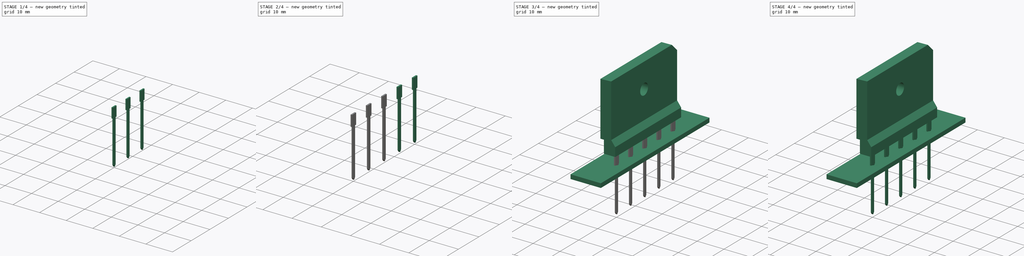
[diagram: build sequence overview — one tinted view per stage of 4, left to right]
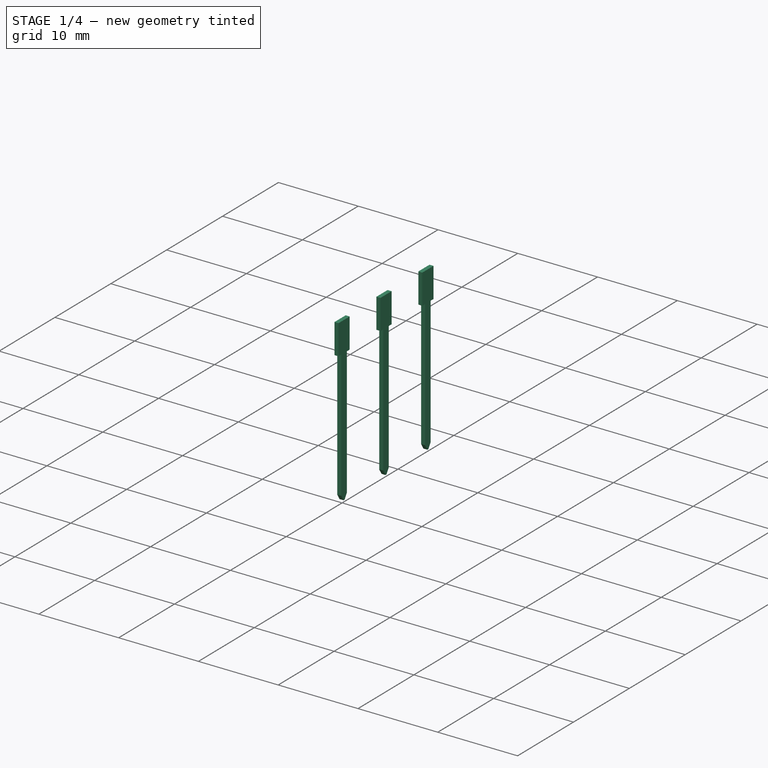
[diagram: stage 1 of 4 — iso view after this stage's code; geometry added in this stage tinted green]
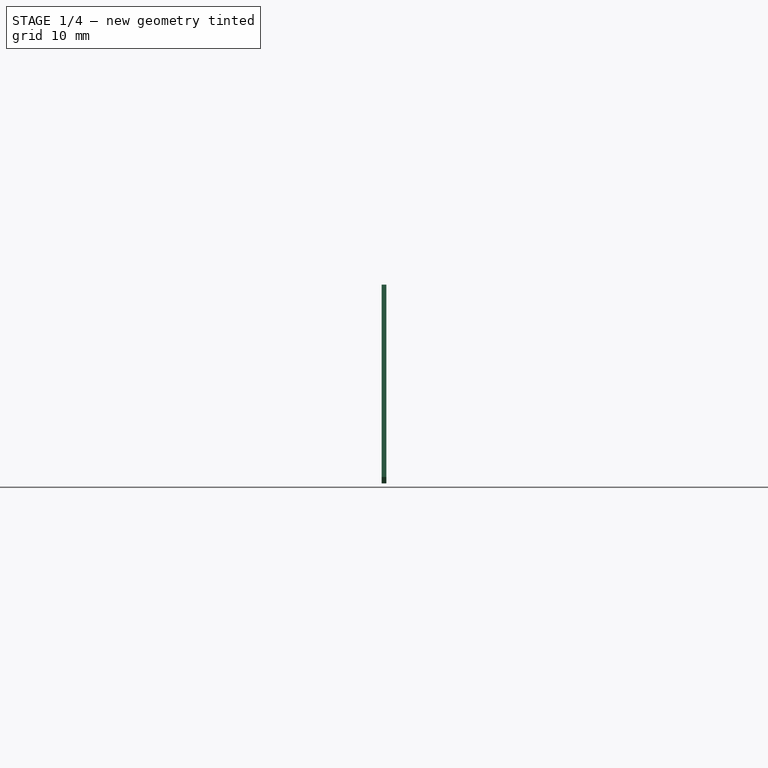
[diagram: stage 1 of 4 — front view after this stage's code; geometry added in this stage tinted green]
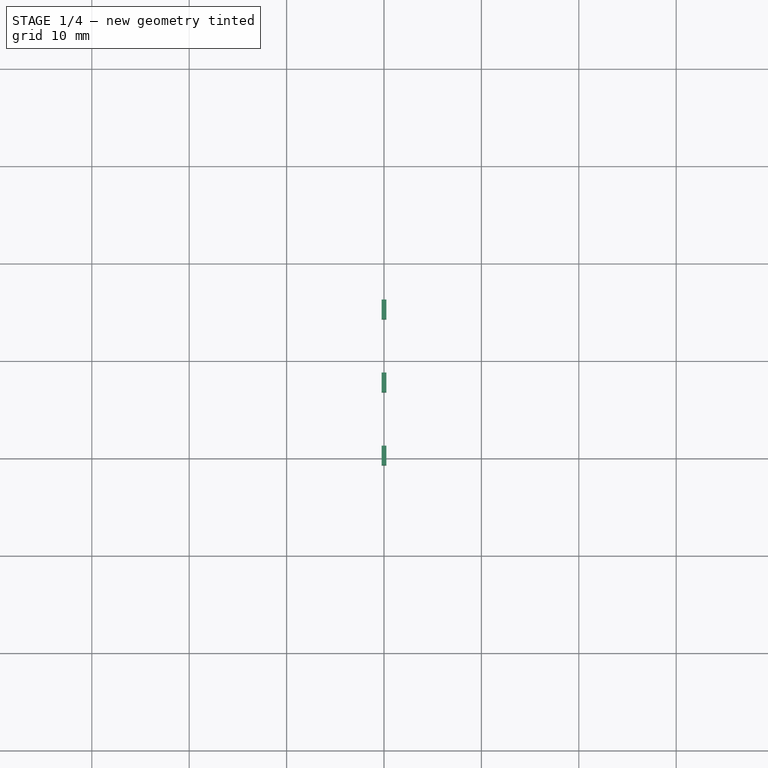
[diagram: stage 1 of 4 — top view after this stage's code; geometry added in this stage tinted green]
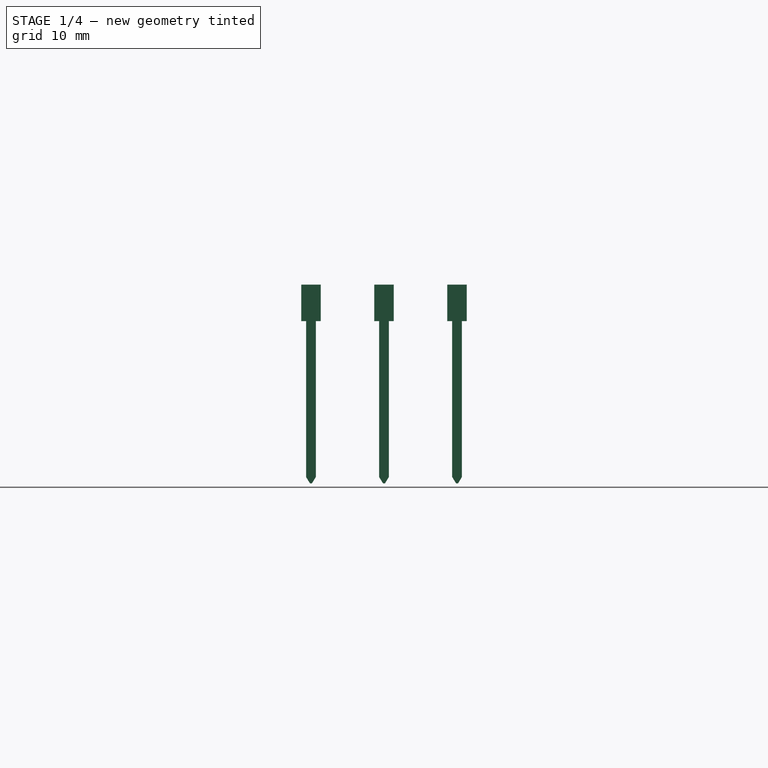
[diagram: stage 1 of 4 — right view after this stage's code; geometry added in this stage tinted green]
FCSTD DOCUMENT  (FreeCAD 0.18R4 (GitTag))
Label: Diode_Bridge_IXYS_GUFP
License: All rights reserved
LicenseURL: http://en.wikipedia.org/wiki/All_rights_reserved
objects: Sketcher::SketchObject×10, Part::FeaturePython×7, Part::Extrusion×5, Part::Compound×2, Part::Feature×2, PartDesign::Pocket×2, App::DocumentObjectGroup×1, PartDesign::Pad×1, PartDesign::Body×1
note: 33 computed .brp shape members not serialized (recipe doc carries the construction recipe); baked Part::Feature solids carry a one-line shape summary decoded from their .brp

FEATURE [Sketcher::SketchObject] Sketch007
  Placement = pos=(0,0,0) rot=(0.57735,0.57735,0.57735;2.0944rad)
  sketch-geometry (10):
    g0: LineSegment StartX=1 StartY=3.75 StartZ=0 EndX=1 EndY=0 EndZ=0
    g1: LineSegment StartX=1 StartY=0 StartZ=0 EndX=0.5 EndY=0 EndZ=0
    g2: LineSegment StartX=0.5 StartY=0 StartZ=0 EndX=0.5 EndY=-16 EndZ=0
    g3: LineSegment StartX=0.5 StartY=-16 StartZ=0 EndX=0.1 EndY=-16.65 EndZ=0
    g4: LineSegment StartX=0.1 StartY=-16.65 StartZ=0 EndX=-0.1 EndY=-16.65 EndZ=0
    g5: LineSegment StartX=-0.1 StartY=-16.65 StartZ=0 EndX=-0.5 EndY=-16 EndZ=0
    g6: LineSegment StartX=-0.5 StartY=-16 StartZ=0 EndX=-0.5 EndY=0 EndZ=0
    g7: LineSegment StartX=-0.5 StartY=-5e-16 StartZ=0 EndX=-1 EndY=-5e-16 EndZ=0
    g8: LineSegment StartX=-1 StartY=-5e-16 StartZ=0 EndX=-1 EndY=3.75 EndZ=0
    g9: LineSegment StartX=-1 StartY=3.75 StartZ=0 EndX=1 EndY=3.75 EndZ=0
  constraints (32):
    c: Vertical(g0)
    c: Horizontal(g1)
    c: Coincident(g1,g0)
    c: Coincident(g2,g1)
    c: Vertical(g2)
    c: Coincident(g5,g4)
    c: Coincident(g6,g5)
    c: Vertical(g6)
    c: Coincident(g7,g6)
    c: Horizontal(g7)
    c: Vertical(g8)
    c: Coincident(g9,g0)
    c: Horizontal(g9)
    c: Equal(g7,g1)
    c: Coincident(g7,g8)
    c: Coincident(g9,g8)
    c: Coincident(g3,g2)
    c: Symmetric(g4,g3,g-2)
    c: Coincident(g3,g4)
    c: Symmetric(g5,g2,g-2)
    c: Equal(g5,g3)
    c: Equal(g6,g2)
    c: Equal(g8,g0)
    c: Symmetric(g8,g0,g-2)
    c: DistanceY(g-1,g1) = 0
    c: DistanceX(g9,g9) = 2
    c: DistanceX(g5,g2) = 1
    c: DistanceX(g4,g4) = 0.2
    c: DistanceY(g8,g8) = 3.75
    c: DistanceY(g8,g0) = 0
    c: DistanceY(g4,g7) = 16.65
    c: DistanceY(g5,g7) = 16
FEATURE [Part::Extrusion] Extrude002  label="Pin003"
  Base = -> Sketch007
  Dir = (1,0,0)
  DirMode = 2
  FaceMakerClass = Part::FaceMakerBullseye
  LengthFwd = 0.5
  LengthRev = 0
  Placement = pos=(0,-15,0) rot=(0,0,1;0rad)
  Solid = true
  Symmetric = true
FEATURE [Sketcher::SketchObject] Sketch008
  Placement = pos=(0,0,0) rot=(0.57735,0.57735,0.57735;2.0944rad)
  sketch-geometry (10):
    g0: LineSegment StartX=1 StartY=3.75 StartZ=0 EndX=1 EndY=0 EndZ=0
    g1: LineSegment StartX=1 StartY=0 StartZ=0 EndX=0.5 EndY=0 EndZ=0
    g2: LineSegment StartX=0.5 StartY=0 StartZ=0 EndX=0.5 EndY=-16 EndZ=0
    g3: LineSegment StartX=0.5 StartY=-16 StartZ=0 EndX=0.1 EndY=-16.65 EndZ=0
    g4: LineSegment StartX=0.1 StartY=-16.65 StartZ=0 EndX=-0.1 EndY=-16.65 EndZ=0
    g5: LineSegment StartX=-0.1 StartY=-16.65 StartZ=0 EndX=-0.5 EndY=-16 EndZ=0
    g6: LineSegment StartX=-0.5 StartY=-16 StartZ=0 EndX=-0.5 EndY=0 EndZ=0
    g7: LineSegment StartX=-0.5 StartY=4e-16 StartZ=0 EndX=-1 EndY=4e-16 EndZ=0
    g8: LineSegment StartX=-1 StartY=4e-16 StartZ=0 EndX=-1 EndY=3.75 EndZ=0
    g9: LineSegment StartX=-1 StartY=3.75 StartZ=0 EndX=1 EndY=3.75 EndZ=0
  constraints (31):
    c: Vertical(g0)
    c: Horizontal(g1)
    c: Coincident(g1,g0)
    c: Coincident(g2,g1)
    c: Vertical(g2)
    c: Coincident(g5,g4)
    c: Coincident(g6,g5)
    c: Vertical(g6)
    c: Coincident(g7,g6)
    c: Horizontal(g7)
    c: Coincident(g9,g0)
    c: Horizontal(g9)
    c: Equal(g7,g1)
    c: Coincident(g7,g8)
    c: Coincident(g9,g8)
    c: Coincident(g3,g2)
    c: Symmetric(g4,g3,g-2)
    c: Coincident(g3,g4)
    c: Symmetric(g5,g2,g-2)
    c: Equal(g5,g3)
    c: Equal(g6,g2)
    c: Equal(g8,g0)
    c: Symmetric(g8,g0,g-2)
    c: DistanceY(g-1,g1) = 0
    c: DistanceX(g9,g9) = 2
    c: DistanceX(g5,g2) = 1
    c: DistanceX(g4,g4) = 0.2
    c: DistanceY(g8,g8) = 3.75
    c: DistanceY(g0,g8) = 0
    c: DistanceY(g4,g7) = 16.65
    c: DistanceY(g5,g6) = 16
FEATURE [Part::Extrusion] Extrude003  label="Pin004"
  Base = -> Sketch008
  Dir = (1,0,0)
  DirMode = 2
  FaceMakerClass = Part::FaceMakerBullseye
  LengthFwd = 0.5
  LengthRev = 0
  Placement = pos=(0,-22.5,0) rot=(0,0,1;0rad)
  Solid = true
  Symmetric = true
FEATURE [Sketcher::SketchObject] Sketch009
  Placement = pos=(0,0,0) rot=(0.57735,0.57735,0.57735;2.0944rad)
  sketch-geometry (10):
    g0: LineSegment StartX=1 StartY=3.75 StartZ=0 EndX=1 EndY=0 EndZ=0
    g1: LineSegment StartX=1 StartY=0 StartZ=0 EndX=0.5 EndY=0 EndZ=0
    g2: LineSegment StartX=0.5 StartY=0 StartZ=0 EndX=0.5 EndY=-16 EndZ=0
    g3: LineSegment StartX=0.5 StartY=-16 StartZ=0 EndX=0.1 EndY=-16.65 EndZ=0
    g4: LineSegment StartX=0.1 StartY=-16.65 StartZ=0 EndX=-0.1 EndY=-16.65 EndZ=0
    g5: LineSegment StartX=-0.1 StartY=-16.65 StartZ=0 EndX=-0.5 EndY=-16 EndZ=0
    g6: LineSegment StartX=-0.5 StartY=-16 StartZ=0 EndX=-0.5 EndY=0 EndZ=0
    g7: LineSegment StartX=-0.5 StartY=-5e-16 StartZ=0 EndX=-1 EndY=-5e-16 EndZ=0
    g8: LineSegment StartX=-1 StartY=-5e-16 StartZ=0 EndX=-1 EndY=3.75 EndZ=0
    g9: LineSegment StartX=-1 StartY=3.75 StartZ=0 EndX=1 EndY=3.75 EndZ=0
  constraints (31):
    c: Vertical(g0)
    c: Horizontal(g1)
    c: Coincident(g1,g0)
    c: Coincident(g2,g1)
    c: Vertical(g2)
    c: Coincident(g5,g4)
    c: Coincident(g6,g5)
    c: Vertical(g6)
    c: Coincident(g7,g6)
    c: Horizontal(g7)
    c: Coincident(g9,g0)
    c: Horizontal(g9)
    c: Equal(g7,g1)
    c: Coincident(g7,g8)
    c: Coincident(g9,g8)
    c: Coincident(g3,g2)
    c: Symmetric(g4,g3,g-2)
    c: Coincident(g3,g4)
    c: Symmetric(g5,g2,g-2)
    c: Equal(g5,g3)
    c: Equal(g6,g2)
    c: Equal(g8,g0)
    c: Symmetric(g8,g0,g-2)
    c: DistanceY(g-1,g1) = 0
    c: DistanceX(g9,g9) = 2
    c: DistanceX(g5,g2) = 1
    c: DistanceX(g4,g4) = 0.2
    c: DistanceY(g8,g8) = 3.75
    c: DistanceY(g8,g0) = 0
    c: DistanceY(g4,g7) = 16.65
    c: DistanceY(g5,g7) = 16
FEATURE [Part::Extrusion] Extrude004  label="Pin005"
  Base = -> Sketch009
  Dir = (1,0,0)
  DirMode = 2
  FaceMakerClass = Part::FaceMakerBullseye
  LengthFwd = 0.5
  LengthRev = 0
  Placement = pos=(0,-30,0) rot=(0,0,1;0rad)
  Solid = true
  Symmetric = true
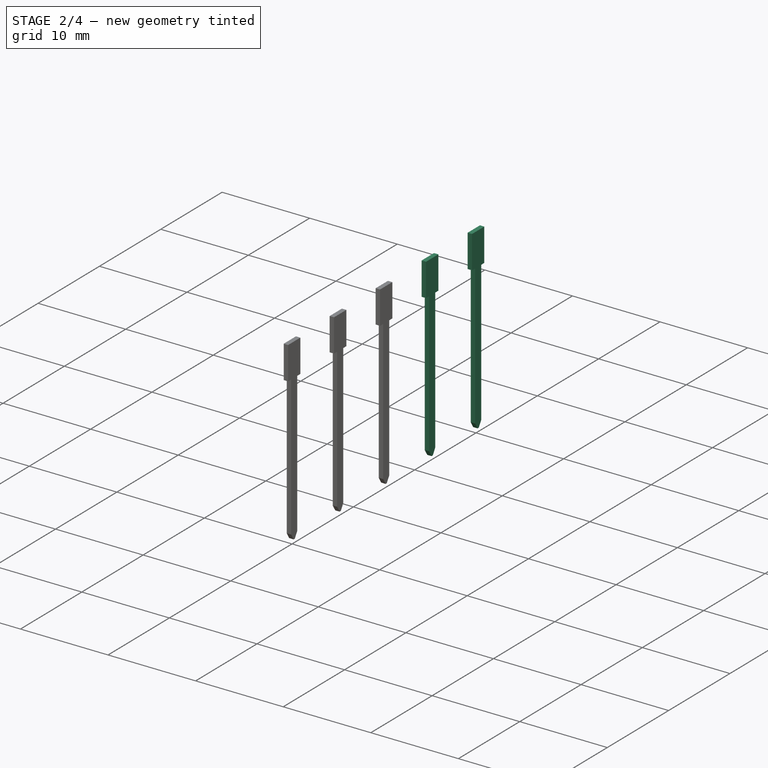
[diagram: stage 2 of 4 — iso view after this stage's code; geometry added in this stage tinted green]
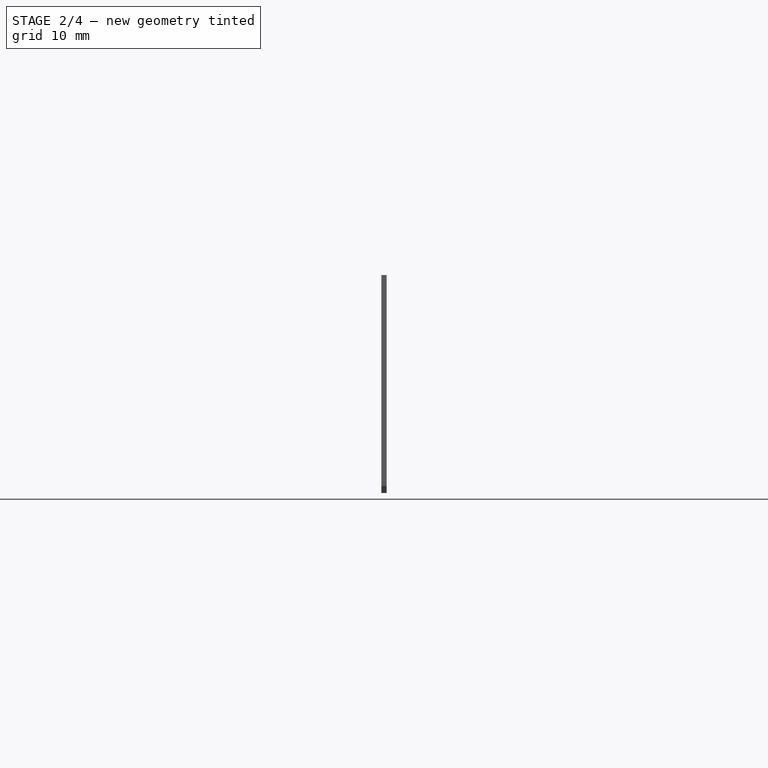
[diagram: stage 2 of 4 — front view after this stage's code; geometry added in this stage tinted green]
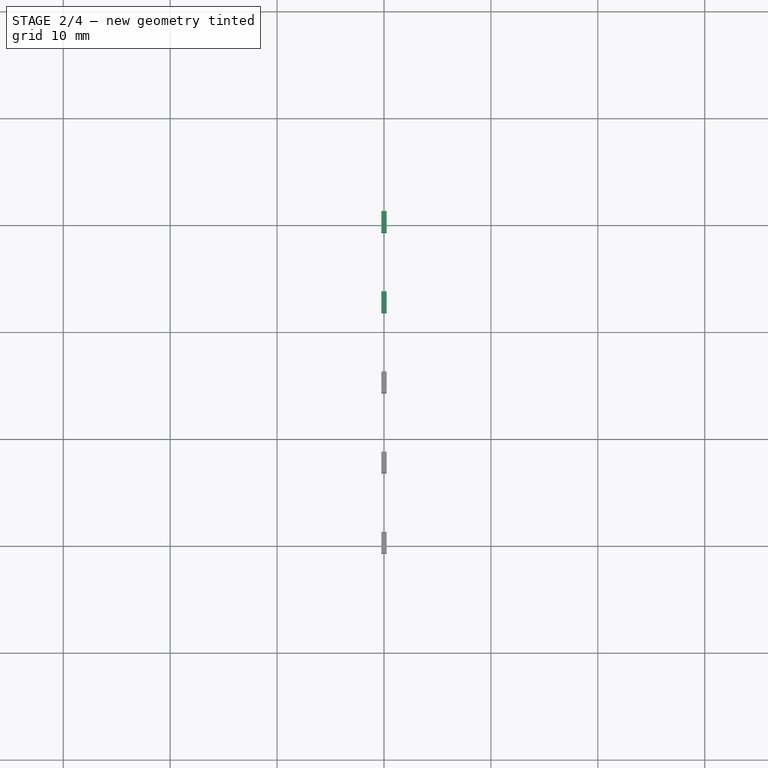
[diagram: stage 2 of 4 — top view after this stage's code; geometry added in this stage tinted green]
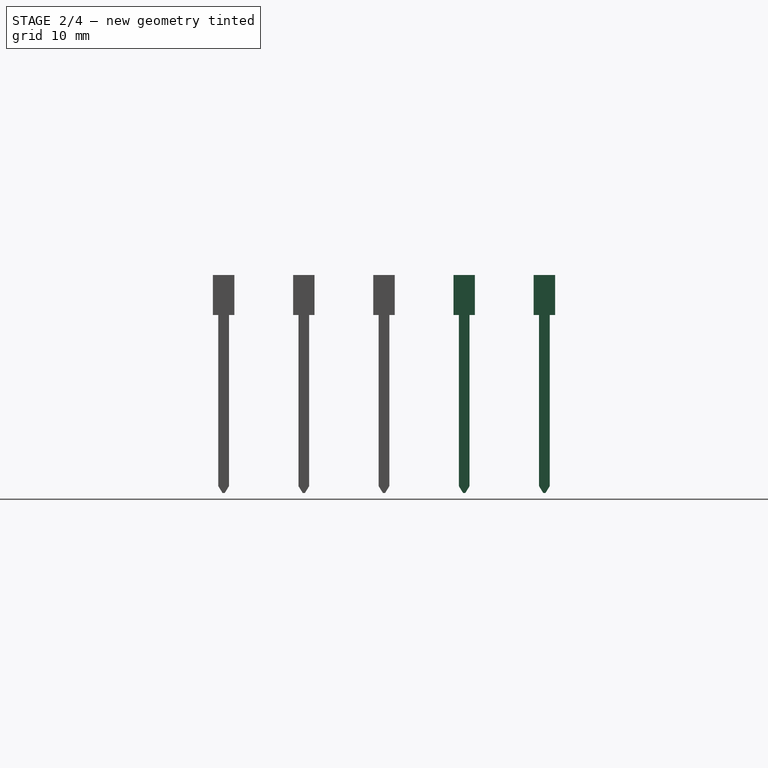
[diagram: stage 2 of 4 — right view after this stage's code; geometry added in this stage tinted green]
FEATURE [App::DocumentObjectGroup] Diode_Bridge_IXYS_GUFP_fp
  Group = -> [FCrtYd_lines,FFab_lines,Filk_lines,TopPads,BotPads,THPs,newPCB]
FEATURE [Sketcher::SketchObject] Sketch
  MapMode = 5
  Support = -> [XY_Plane]
  sketch-geometry (4):
    g0: LineSegment StartX=-4.50178 StartY=2.49793 StartZ=0 EndX=1.00207 EndY=2.49793 EndZ=0
    g1: LineSegment StartX=1.00207 StartY=2.49793 StartZ=0 EndX=1.00207 EndY=-32.4996 EndZ=0
    g2: LineSegment StartX=1.00207 StartY=-32.4996 StartZ=0 EndX=-4.50178 EndY=-32.4996 EndZ=0
    g3: LineSegment StartX=-4.50178 StartY=-32.4996 StartZ=0 EndX=-4.50178 EndY=2.49793 EndZ=0
  constraints (8):
    c: Coincident(g0,g1)
    c: Coincident(g1,g2)
    c: Coincident(g2,g3)
    c: Coincident(g3,g0)
    c: Horizontal(g0)
    c: Horizontal(g2)
    c: Vertical(g1)
    c: Vertical(g3)
FEATURE [Sketcher::SketchObject] Sketch001
  AttachmentOffset = pos=(2.56,3.75,0) rot=(0,1,0;4.71239rad)
  MapMode = 5
  Placement = pos=(-3e-16,2.56,3.75) rot=(-1,0,0;4.71239rad)
  Support = -> [YZ_Plane]
  sketch-geometry (8):
    g0: LineSegment StartX=-3.2 StartY=0 StartZ=0 EndX=1 EndY=0 EndZ=0
    g1: LineSegment StartX=1 StartY=0 StartZ=0 EndX=1 EndY=3.3 EndZ=0
    g2: LineSegment StartX=1 StartY=3.3 StartZ=0 EndX=-0.5 EndY=5.3 EndZ=0
    g3: LineSegment StartX=-0.5 StartY=5.3 StartZ=0 EndX=-0.5 EndY=25 EndZ=0
    g4: LineSegment StartX=-0.5 StartY=25 StartZ=0 EndX=-4.5 EndY=24.8 EndZ=0
    g5: LineSegment StartX=-4.5 StartY=24.8 StartZ=0 EndX=-4.5 EndY=4.7 EndZ=0
    g6: LineSegment StartX=-4.5 StartY=4.7 StartZ=0 EndX=-3.2 EndY=4.7 EndZ=0
    g7: LineSegment StartX=-3.2 StartY=4.7 StartZ=0 EndX=-3.2 EndY=0 EndZ=0
  constraints (23):
    c: PointOnObject(g0,g-1)
    c: PointOnObject(g0,g-1)
    c: Coincident(g1,g0)
    c: Vertical(g1)
    c: Coincident(g3,g2)
    c: Vertical(g3)
    c: Coincident(g4,g3)
    c: Vertical(g5)
    c: Coincident(g6,g5)
    c: Coincident(g7,g0)
    c: Horizontal(g6)
    c: Vertical(g7)
    c: DistanceX(g4,g4) = 4
    c: Coincident(g1,g2)
    c: Coincident(g4,g5)
    c: Coincident(g7,g6)
    c: DistanceY(g7,g7) = 4.7
    c: DistanceY(g1,g1) = 3.3
    c: DistanceY(g5,g5) = 20.1
    c: DistanceX(g6,g6) = 1.3
    c: DistanceX(g-1,g0) = 1
    c: DistanceX(g5,g0) = 5.5
    c: DistanceY(g6,g3) = 20.3
FEATURE [PartDesign::Pad] Pad
  Length = 35
  Length2 = 100
  Placement = pos=(0,0,0) rot=(0.57735,0.57735,0.57735;2.0944rad)
  Profile = -> Sketch001
  Type = 0
FEATURE [Sketcher::SketchObject] Sketch002
  Placement = pos=(0,0,0) rot=(0.57735,0.57735,0.57735;2.0944rad)
  sketch-geometry (5):
    g0: Circle CenterX=-14.94 CenterY=19.476 CenterZ=0 NormalX=0 NormalY=0 NormalZ=1 AngleXU=0 Radius=2.1
    g1: LineSegment StartX=-32.44 StartY=3.77598 StartZ=0 EndX=2.56 EndY=3.77598 EndZ=0
    g2: LineSegment StartX=2.56 StartY=3.77598 StartZ=0 EndX=2.56 EndY=28.776 EndZ=0
    g3: LineSegment StartX=2.56 StartY=28.776 StartZ=0 EndX=-32.44 EndY=28.776 EndZ=0
    g4: LineSegment StartX=-32.44 StartY=28.776 StartZ=0 EndX=-32.44 EndY=3.77598 EndZ=0
  constraints (14):
    c: Coincident(g1,g2)
    c: Coincident(g2,g3)
    c: Coincident(g3,g4)
    c: Coincident(g4,g1)
    c: Horizontal(g1)
    c: Horizontal(g3)
    c: Vertical(g2)
    c: Vertical(g4)
    c: DistanceX(g3,g3) = 35
    c: DistanceY(g2,g2) = 25
    c: DistanceY(g0,g3) = 9.3
    c: Diameter(g0) = 4.2
    c: DistanceX(g0,g1) = 17.5
    c: DistanceX(g-1,g2) = 2.56
FEATURE [Sketcher::SketchObject] Sketch005
  Placement = pos=(0,0,0) rot=(0.57735,0.57735,0.57735;2.0944rad)
  sketch-geometry (10):
    g0: LineSegment StartX=1 StartY=3.75 StartZ=0 EndX=1 EndY=0 EndZ=0
    g1: LineSegment StartX=1 StartY=0 StartZ=0 EndX=0.5 EndY=0 EndZ=0
    g2: LineSegment StartX=0.5 StartY=0 StartZ=0 EndX=0.5 EndY=-16 EndZ=0
    g3: LineSegment StartX=0.5 StartY=-16 StartZ=0 EndX=0.1 EndY=-16.65 EndZ=0
    g4: LineSegment StartX=0.1 StartY=-16.65 StartZ=0 EndX=-0.1 EndY=-16.65 EndZ=0
    g5: LineSegment StartX=-0.1 StartY=-16.65 StartZ=0 EndX=-0.5 EndY=-16 EndZ=0
    g6: LineSegment StartX=-0.5 StartY=-16 StartZ=0 EndX=-0.5 EndY=0 EndZ=0
    g7: LineSegment StartX=-0.5 StartY=0 StartZ=0 EndX=-1 EndY=0 EndZ=0
    g8: LineSegment StartX=-1 StartY=0 StartZ=0 EndX=-1 EndY=3.75 EndZ=0
    g9: LineSegment StartX=-1 StartY=3.75 StartZ=0 EndX=1 EndY=3.75 EndZ=0
  constraints (31):
    c: Vertical(g0)
    c: Horizontal(g1)
    c: Coincident(g1,g0)
    c: Coincident(g2,g1)
    c: Vertical(g2)
    c: Coincident(g5,g4)
    c: Coincident(g6,g5)
    c: Vertical(g6)
    c: Coincident(g7,g6)
    c: Horizontal(g7)
    c: Coincident(g9,g0)
    c: Horizontal(g9)
    c: Equal(g7,g1)
    c: Coincident(g7,g8)
    c: Coincident(g9,g8)
    c: Coincident(g3,g2)
    c: Symmetric(g4,g3,g-2)
    c: Coincident(g3,g4)
    c: Symmetric(g5,g2,g-2)
    c: Equal(g5,g3)
    c: Equal(g6,g2)
    c: Equal(g8,g0)
    c: Symmetric(g8,g0,g-2)
    c: DistanceY(g-1,g1) = 0
    c: DistanceX(g9,g9) = 2
    c: DistanceX(g5,g2) = 1
    c: DistanceX(g4,g4) = 0.2
    c: DistanceY(g8,g8) = 3.75
    c: DistanceY(g8,g0) = 0
    c: DistanceY(g4,g6) = 16.65
    c: DistanceY(g5,g6) = 16
FEATURE [Part::Extrusion] Extrude  label="Pin001"
  Base = -> Sketch005
  Dir = (1,0,0)
  DirMode = 2
  FaceMakerClass = Part::FaceMakerBullseye
  LengthFwd = 0.5
  LengthRev = 0
  Solid = true
  Symmetric = true
FEATURE [Sketcher::SketchObject] Sketch006
  Placement = pos=(0,0,0) rot=(0.57735,0.57735,0.57735;2.0944rad)
  sketch-geometry (10):
    g0: LineSegment StartX=1 StartY=3.75 StartZ=0 EndX=1 EndY=0 EndZ=0
    g1: LineSegment StartX=1 StartY=0 StartZ=0 EndX=0.5 EndY=0 EndZ=0
    g2: LineSegment StartX=0.5 StartY=0 StartZ=0 EndX=0.5 EndY=-16 EndZ=0
    g3: LineSegment StartX=0.5 StartY=-16 StartZ=0 EndX=0.1 EndY=-16.65 EndZ=0
    g4: LineSegment StartX=0.1 StartY=-16.65 StartZ=0 EndX=-0.1 EndY=-16.65 EndZ=0
    g5: LineSegment StartX=-0.1 StartY=-16.65 StartZ=0 EndX=-0.5 EndY=-16 EndZ=0
    g6: LineSegment StartX=-0.5 StartY=-16 StartZ=0 EndX=-0.5 EndY=0 EndZ=0
    g7: LineSegment StartX=-0.5 StartY=-3e-16 StartZ=0 EndX=-1 EndY=-3e-16 EndZ=0
    g8: LineSegment StartX=-1 StartY=-3e-16 StartZ=0 EndX=-1 EndY=3.75 EndZ=0
    g9: LineSegment StartX=-1 StartY=3.75 StartZ=0 EndX=1 EndY=3.75 EndZ=0
  constraints (31):
    c: Vertical(g0)
    c: Horizontal(g1)
    c: Coincident(g1,g0)
    c: Coincident(g2,g1)
    c: Vertical(g2)
    c: Coincident(g5,g4)
    c: Coincident(g6,g5)
    c: Vertical(g6)
    c: Coincident(g7,g6)
    c: Horizontal(g7)
    c: Coincident(g9,g0)
    c: Horizontal(g9)
    c: Equal(g7,g1)
    c: Coincident(g7,g8)
    c: Coincident(g9,g8)
    c: Coincident(g3,g2)
    c: Symmetric(g4,g3,g-2)
    c: Coincident(g3,g4)
    c: Symmetric(g5,g2,g-2)
    c: Equal(g5,g3)
    c: Equal(g6,g2)
    c: Equal(g8,g0)
    c: Symmetric(g8,g0,g-2)
    c: DistanceY(g-1,g1) = 0
    c: DistanceX(g9,g9) = 2
    c: DistanceX(g5,g2) = 1
    c: DistanceX(g4,g4) = 0.2
    c: DistanceY(g8,g8) = 3.75
    c: DistanceY(g0,g8) = 0
    c: DistanceY(g4,g7) = 16.65
    c: DistanceY(g5,g7) = 16
FEATURE [Part::Extrusion] Extrude001  label="Pin002"
  Base = -> Sketch006
  Dir = (1,0,0)
  DirMode = 2
  FaceMakerClass = Part::FaceMakerBullseye
  LengthFwd = 0.5
  LengthRev = 0
  Placement = pos=(0,-7.5,0) rot=(0,0,1;0rad)
  Solid = true
  Symmetric = true
FEATURE [Part::Compound] Pin001_mp
  Links = -> [Extrude,Extrude001,Extrude002,Extrude003,Extrude004]
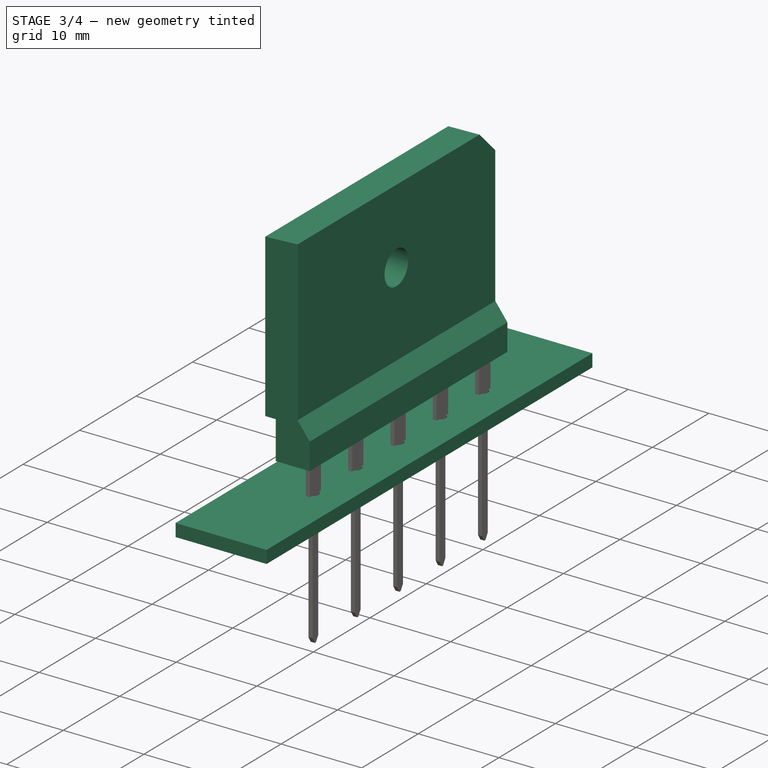
[diagram: stage 3 of 4 — iso view after this stage's code; geometry added in this stage tinted green]
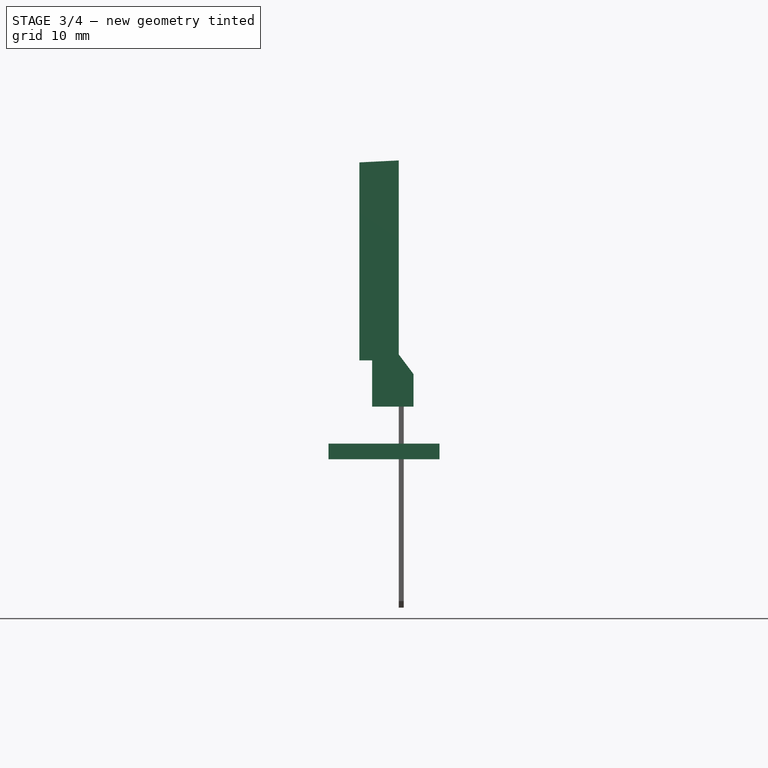
[diagram: stage 3 of 4 — front view after this stage's code; geometry added in this stage tinted green]
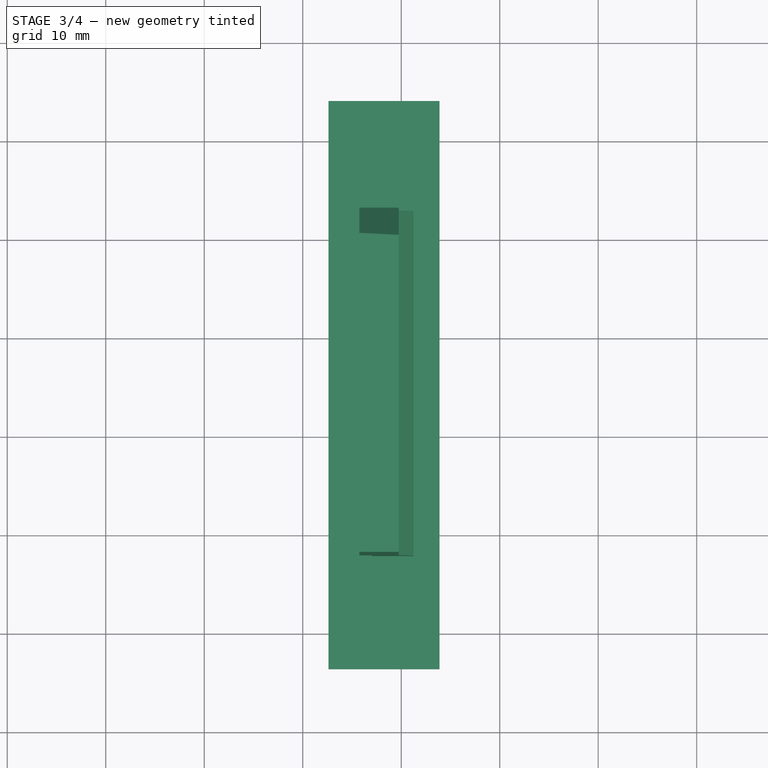
[diagram: stage 3 of 4 — top view after this stage's code; geometry added in this stage tinted green]
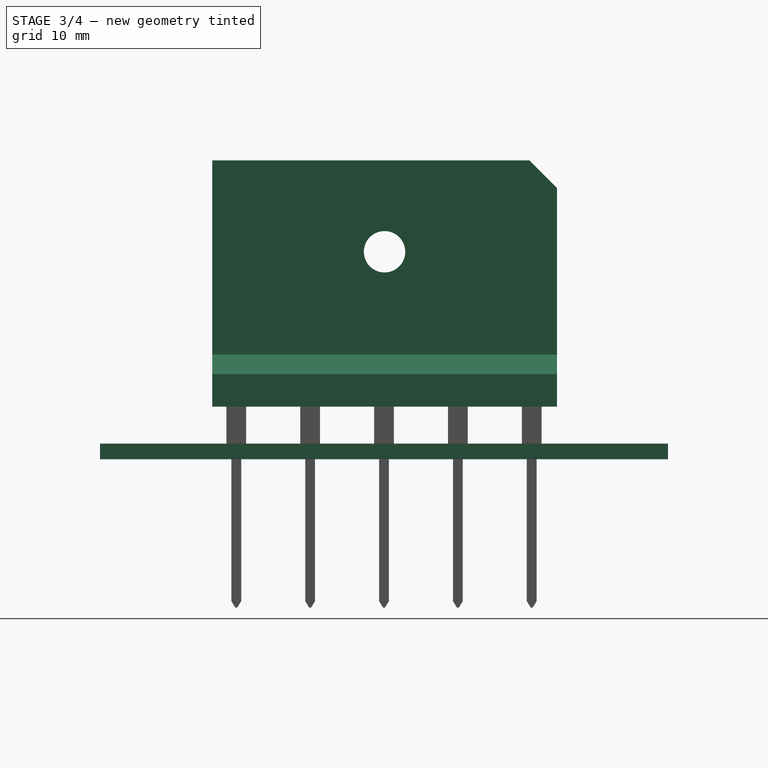
[diagram: stage 3 of 4 — right view after this stage's code; geometry added in this stage tinted green]
FEATURE [Part::FeaturePython] newPCB  label="Pcb"  # a2plus imported part (geometry in sourceFile) (typed FeaturePython)
  fixedPosition = true
FEATURE [Sketcher::SketchObject] Sketch010
  Placement = pos=(0,0,0) rot=(0.57735,0.57735,0.57735;2.0944rad)
  sketch-geometry (1):
    g0: Circle CenterX=-14.944 CenterY=19.476 CenterZ=0 NormalX=0 NormalY=0 NormalZ=1 AngleXU=0 Radius=2.1
  constraints (1):
    c: Diameter(g0) = 4.2
FEATURE [Part::Feature] Shape  label="Body_sc"
  shape: bbox 5.5 x 35 x 25 mm, 12 faces (baked)
FEATURE [Part::Compound] Body_sc_mp
  Links = -> [Shape,Pin001_mp]
FEATURE [Part::Feature] Shape001  label="Diode_Bridge_IXYS_GUFP"
  shape: bbox 5.5 x 35 x 45.4 mm, 72 faces, 6 solids (baked)
FEATURE [PartDesign::Body] Body
  Group = -> [Sketch,Sketch001,Pad,Pocket001,Sketch010,Pocket]
  Origin = -> Origin
  Tip = -> Pocket
FEATURE [Sketcher::SketchObject] Sketch004
  AttachmentOffset = pos=(0.1,0,0) rot=(0,0,1;0rad)
  MapMode = 4
  Placement = pos=(0,0.1,0) rot=(0.57735,0.57735,0.57735;2.0944rad)
  Support = -> [Body]
  sketch-geometry (3):
    g0: LineSegment StartX=-0.374562 StartY=28.7808 StartZ=0 EndX=2.52544 EndY=25.8808 EndZ=0
    g1: LineSegment StartX=-0.374562 StartY=28.7808 StartZ=0 EndX=2.52544 EndY=28.7808 EndZ=0
    g2: LineSegment StartX=2.52544 StartY=28.7808 StartZ=0 EndX=2.52544 EndY=25.8808 EndZ=0
  constraints (7):
    c: DistanceX(g0,g0) = 2.9
    c: DistanceY(g0,g0) = 2.9
    c: Coincident(g1,g0)
    c: Horizontal(g1)
    c: Coincident(g2,g1)
    c: Coincident(g2,g0)
    c: Vertical(g2)
FEATURE [PartDesign::Pocket] Pocket001
  BaseFeature = -> Pad
  Length = 5
  Length2 = 100
  Placement = pos=(0,0,0) rot=(0.57735,0.57735,0.57735;2.0944rad)
  Profile = -> Sketch004
  Type = 1
FEATURE [PartDesign::Pocket] Pocket
  BaseFeature = -> Pocket001
  Length = 5
  Length2 = 100
  Placement = pos=(0,0,0) rot=(0.57735,0.57735,0.57735;2.0944rad)
  Profile = -> Sketch010
  Type = 1
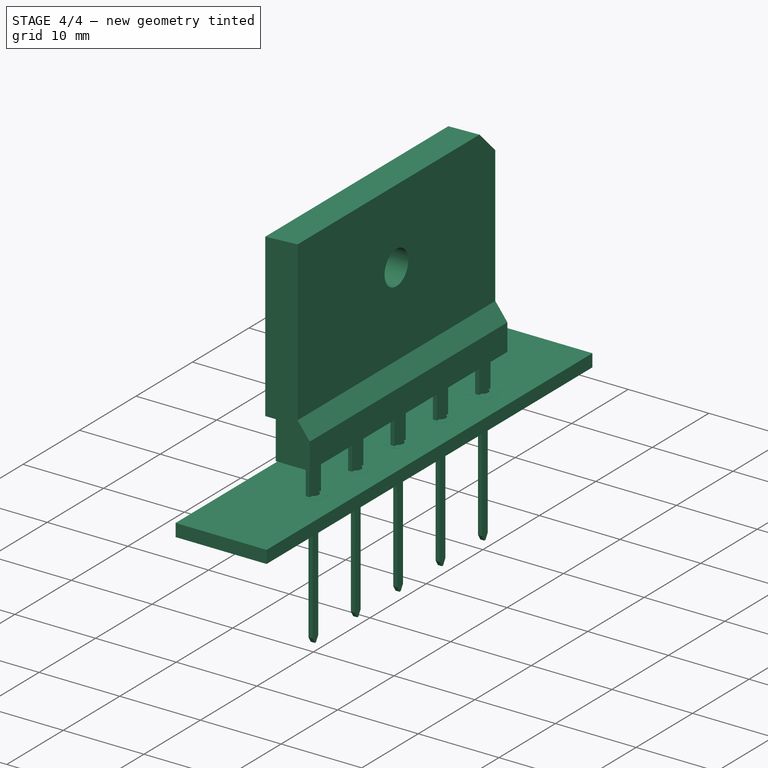
[diagram: stage 4 of 4 — iso view after this stage's code; geometry added in this stage tinted green]
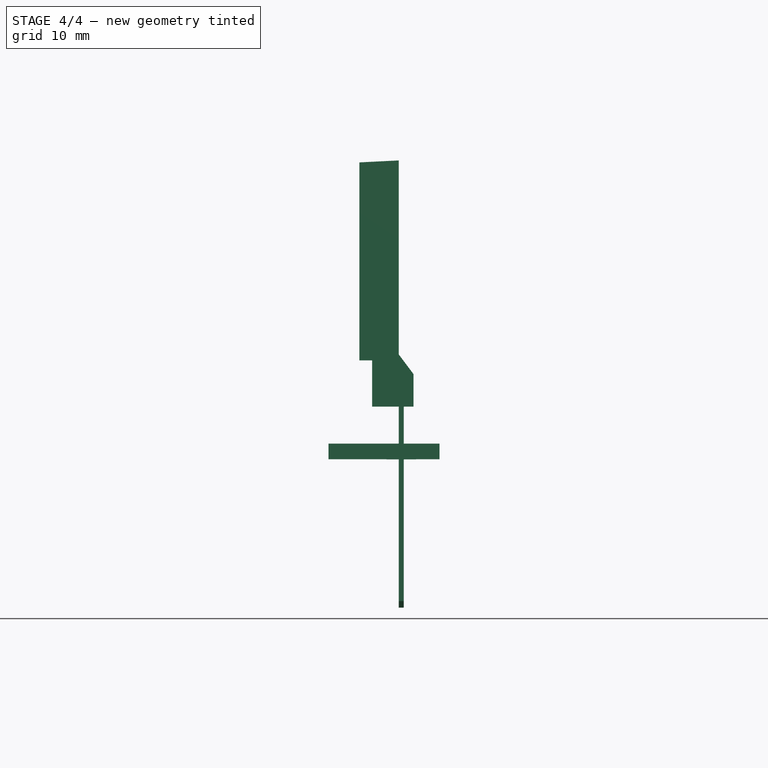
[diagram: stage 4 of 4 — front view after this stage's code; geometry added in this stage tinted green]
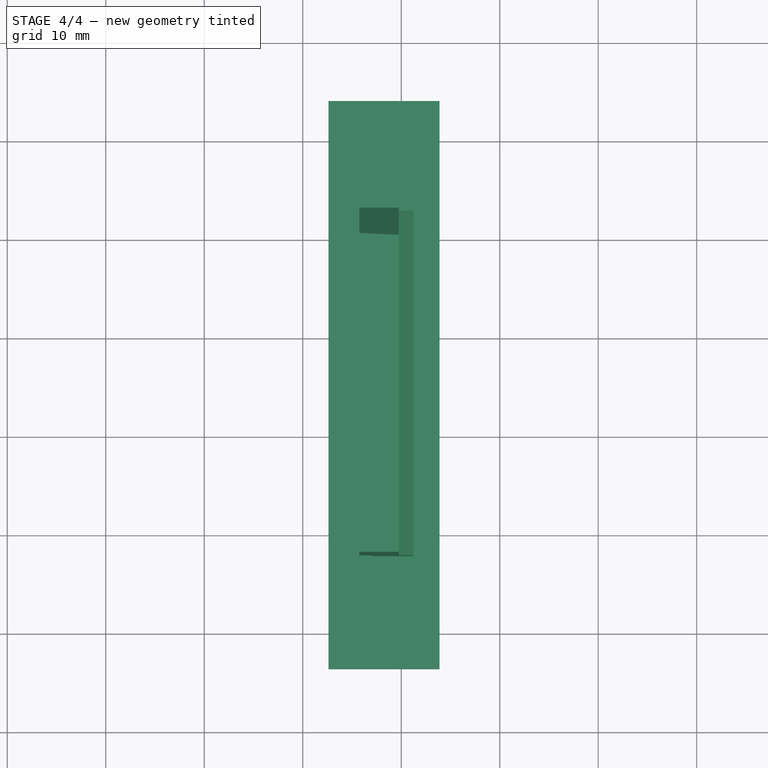
[diagram: stage 4 of 4 — top view after this stage's code; geometry added in this stage tinted green]
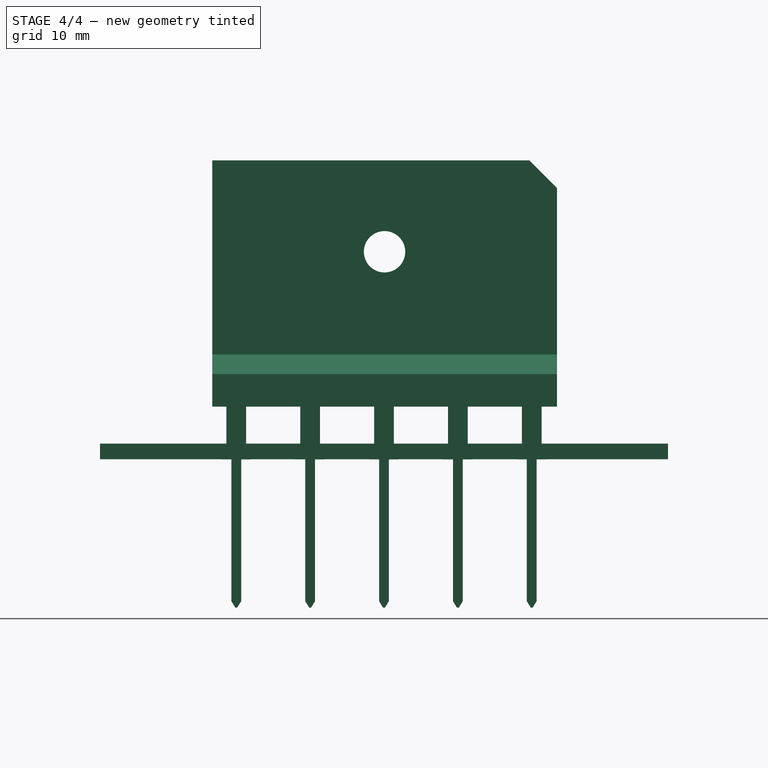
[diagram: stage 4 of 4 — right view after this stage's code; geometry added in this stage tinted green]
FEATURE [Part::FeaturePython] FCrtYd_lines  label="FCrtYd"  # a2plus imported part (geometry in sourceFile) (typed FeaturePython)
  fixedPosition = true
FEATURE [Part::FeaturePython] FFab_lines  label="FFab"  # a2plus imported part (geometry in sourceFile) (typed FeaturePython)
  fixedPosition = true
FEATURE [Part::FeaturePython] Filk_lines  label="FrontSilk"  # a2plus imported part (geometry in sourceFile) (typed FeaturePython)
  fixedPosition = true
FEATURE [Part::FeaturePython] TopPads  # a2plus imported part (geometry in sourceFile) (typed FeaturePython)
  fixedPosition = true
FEATURE [Part::FeaturePython] BotPads  # a2plus imported part (geometry in sourceFile) (typed FeaturePython)
  fixedPosition = true
FEATURE [Part::FeaturePython] THPs  label="PTHs"  # a2plus imported part (geometry in sourceFile) (typed FeaturePython)
  fixedPosition = true
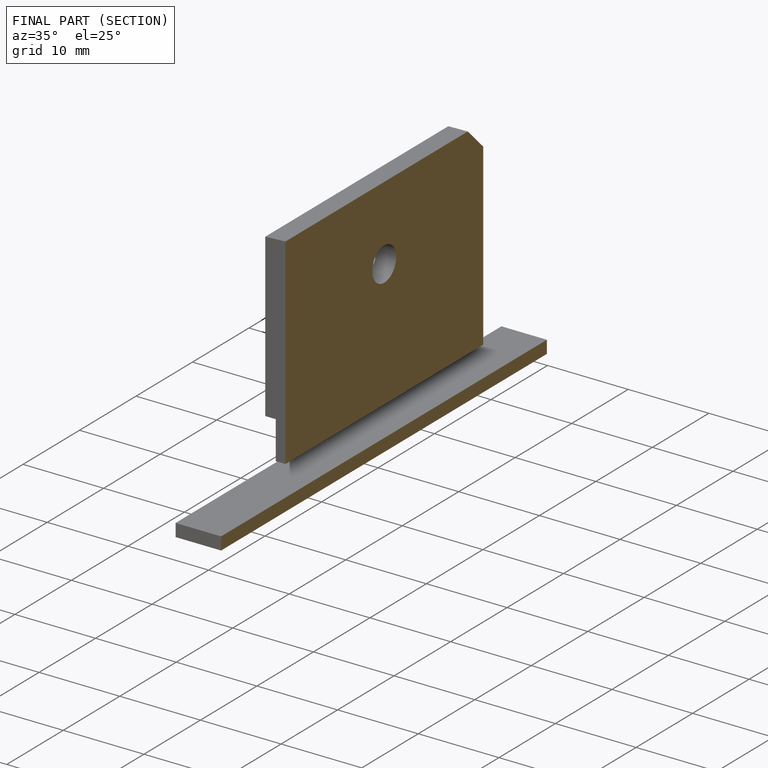
[diagram: finished part — half-section view (interior)]
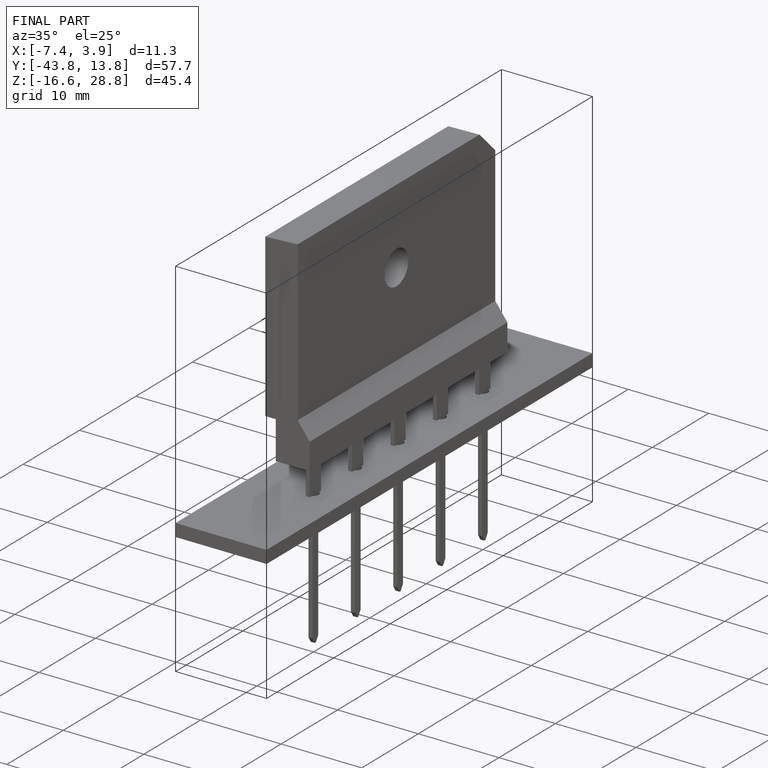
[diagram: finished part — iso view with bounding-box wireframe]
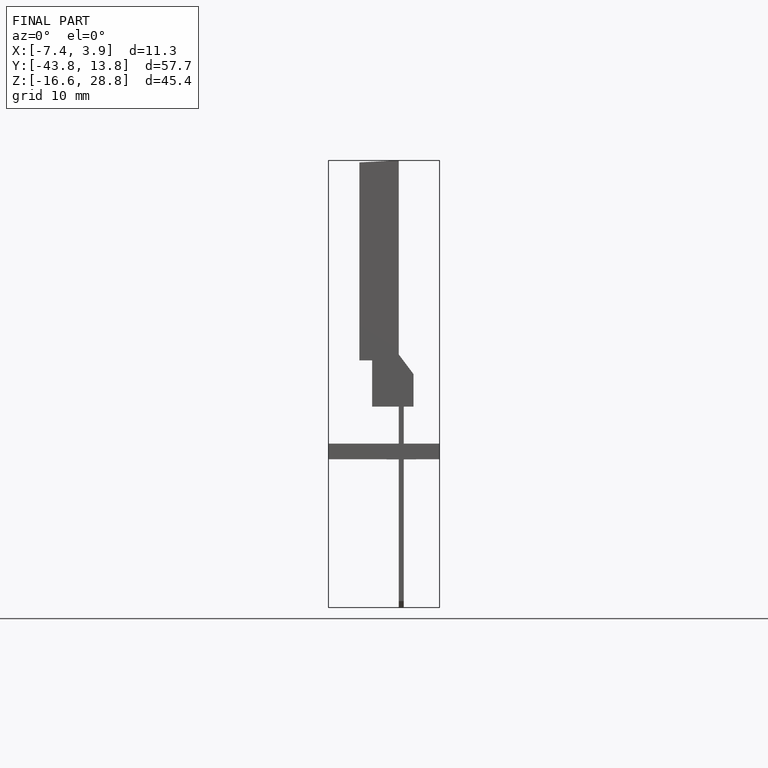
[diagram: finished part — front view with bounding-box wireframe]
